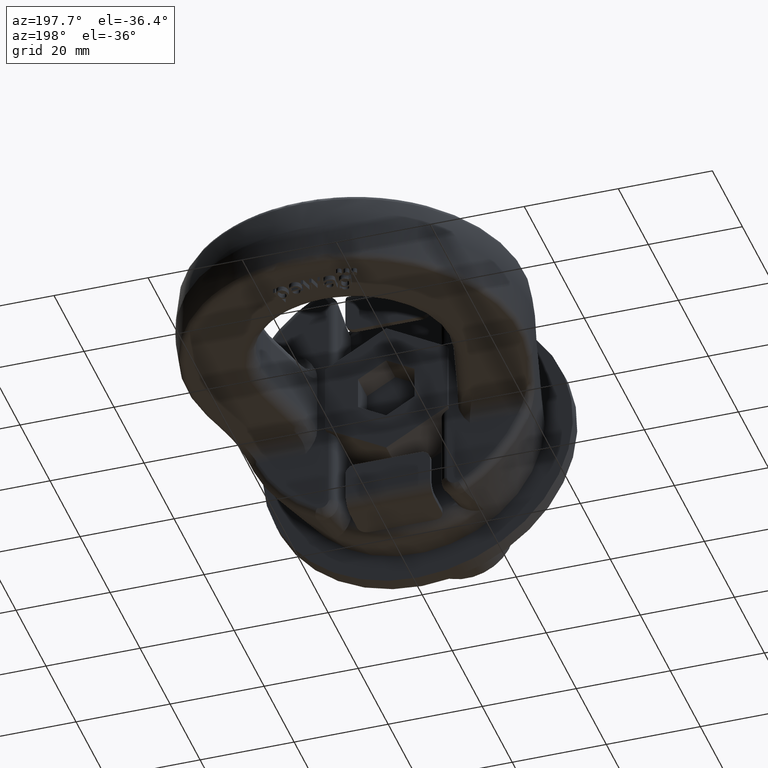
[diagram: clean part render]
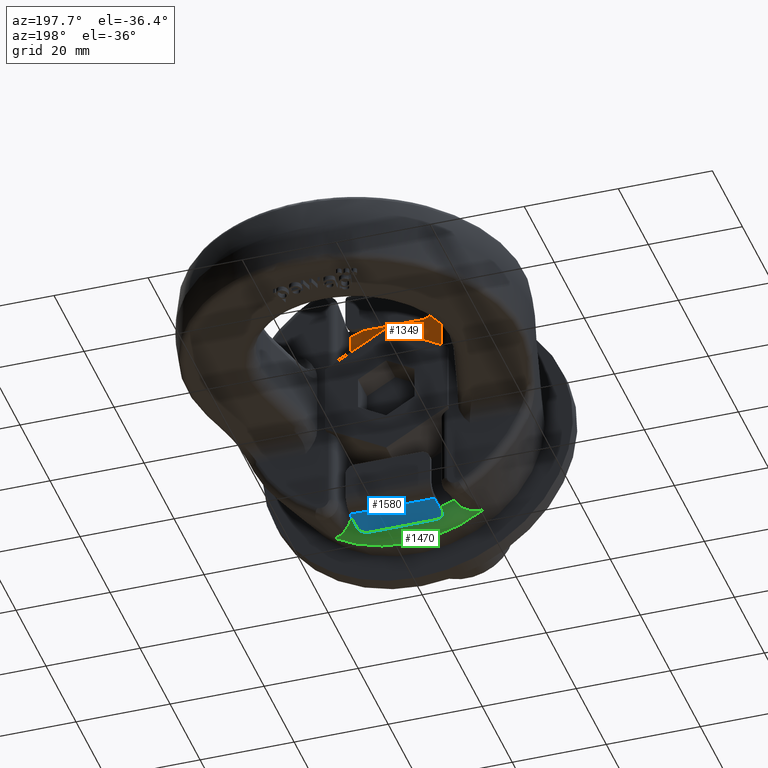
[diagram: same view with three faces highlighted in distinct colors, each labeled with its STEP entity id]
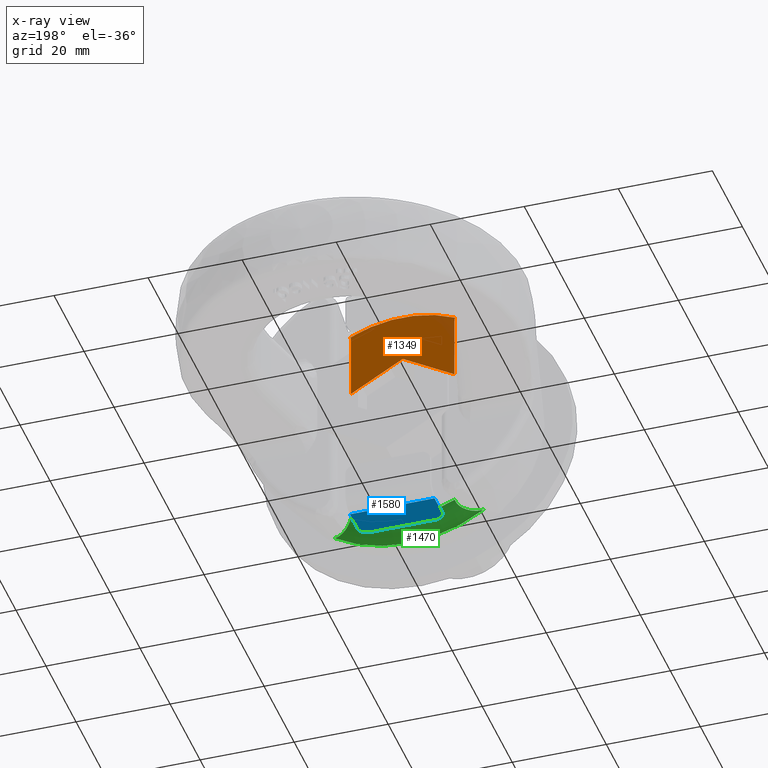
[diagram: x-ray of the same camera — body ghosted, the three highlighted faces saturated]
A machine part, auxiliary view with three faces highlighted in distinct colors.
The next image is the same camera in x-ray (body ghosted, the three faces saturated) — at least one of them is partly hidden behind the body in this view.
Their STEP definitions:

[orange] entity #1349 — the highlighted planar face has unit normal (-0, 1, 0).
#1129=FACE_OUTER_BOUND('',#1866,.T.);
#1349=ADVANCED_FACE('',(#1129),#1589,.T.);
#1589=PLANE('',#5176);
#1711=CIRCLE('',#5175,25.4474312312637);
#1866=EDGE_LOOP('',(#2828,#2829,#2830,#2831,#2832,#2833,#2834));
#2178=LINE('',#6694,#2458);
#2179=LINE('',#6708,#2459);
#2180=LINE('',#6710,#2460);
#2181=LINE('',#6712,#2461);
#2458=VECTOR('',#5502,1.);
#2459=VECTOR('',#5507,1.);
#2460=VECTOR('',#5508,1.);
#2461=VECTOR('',#5509,1.);
#2828=ORIENTED_EDGE('',*,*,#4394,.T.);
#2829=ORIENTED_EDGE('',*,*,#4395,.T.);
#2830=ORIENTED_EDGE('',*,*,#4396,.T.);
#2831=ORIENTED_EDGE('',*,*,#4397,.T.);
#2832=ORIENTED_EDGE('',*,*,#4398,.F.);
#2833=ORIENTED_EDGE('',*,*,#4399,.T.);
#2834=ORIENTED_EDGE('',*,*,#4400,.T.);
#4002=VERTEX_POINT('',#6682);
#4005=VERTEX_POINT('',#6693);
#4006=VERTEX_POINT('',#6700);
#4007=VERTEX_POINT('',#6702);
#4008=VERTEX_POINT('',#6707);
#4009=VERTEX_POINT('',#6709);
#4010=VERTEX_POINT('',#6711);
#4394=EDGE_CURVE('',#4002,#4005,#2178,.T.);
#4395=EDGE_CURVE('',#4005,#4006,#4927,.T.);
#4396=EDGE_CURVE('',#4006,#4007,#1711,.T.);
#4397=EDGE_CURVE('',#4007,#4008,#4928,.T.);
#4398=EDGE_CURVE('',#4009,#4008,#2179,.T.);
#4399=EDGE_CURVE('',#4009,#4010,#2180,.T.);
#4400=EDGE_CURVE('',#4010,#4002,#2181,.T.);
#4927=B_SPLINE_CURVE_WITH_KNOTS('',3,(#6696,#6697,#6698,#6699),
 .UNSPECIFIED.,.F.,.F.,(4,4),(0.,1.),.UNSPECIFIED.);
#4928=B_SPLINE_CURVE_WITH_KNOTS('',3,(#6703,#6704,#6705,#6706),
 .UNSPECIFIED.,.F.,.F.,(4,4),(0.,1.),.UNSPECIFIED.);
#5175=AXIS2_PLACEMENT_3D('',#6701,#5505,#5506);
#5176=AXIS2_PLACEMENT_3D('',#6713,#5510,#5511);
#5502=DIRECTION('',(0.,0.,1.));
#5505=DIRECTION('',(-2.36553201269565E-16,1.,0.));
#5506=DIRECTION('',(-1.,-2.04506709562762E-16,0.));
#5507=DIRECTION('',(0.,0.,1.));
#5508=DIRECTION('',(-0.866025403784442,-2.04861081645977E-16,0.499999999999995));
#5509=DIRECTION('',(-0.866025403784442,-2.04861081645977E-16,-0.499999999999995));
#5510=DIRECTION('',(-2.36553201269565E-16,1.,0.));
#5511=DIRECTION('',(-1.,-2.35922392732846E-16,0.));
#6682=CARTESIAN_POINT('',(-11.,13.,8.66025403784439));
#6693=CARTESIAN_POINT('',(-11.,13.,22.1036429607526));
#6694=CARTESIAN_POINT('',(-11.,13.,40.15));
#6696=CARTESIAN_POINT('',(-11.,13.,22.1036429607526));
#6697=CARTESIAN_POINT('',(-11.,13.,22.3717313278362));
#6698=CARTESIAN_POINT('',(-11.031175268281,13.,22.6415939864479));
#6699=CARTESIAN_POINT('',(-11.0925260053939,13.,22.9025680457359));
#6700=CARTESIAN_POINT('',(-11.0925260053939,13.,22.9025680457359));
#6701=CARTESIAN_POINT('',(-1.57184976828268E-13,13.,0.));
#6702=CARTESIAN_POINT('',(11.0925260053939,13.,22.9025680457357));
#6703=CARTESIAN_POINT('',(11.0925260053939,13.,22.9025680457357));
#6704=CARTESIAN_POINT('',(11.031175268281,13.,22.6415939864478));
#6705=CARTESIAN_POINT('',(11.,13.,22.371731327836));
#6706=CARTESIAN_POINT('',(11.,13.,22.1036429607525));
#6707=CARTESIAN_POINT('',(11.,13.,22.1036429607525));
#6708=CARTESIAN_POINT('',(11.,13.,40.15));
#6709=CARTESIAN_POINT('',(11.,13.,8.66025403784439));
#6710=CARTESIAN_POINT('',(-19.1354599809726,13.,26.0589699700119));
#6711=CARTESIAN_POINT('',(0.,13.,15.0111069989302));
#6712=CARTESIAN_POINT('',(2.63545998097249,13.,16.5326905283831));
#6713=CARTESIAN_POINT('',(-11.,13.,40.15));

[blue] entity #1580 — the highlighted planar face has unit normal (-0, 0, 1).
#1340=FACE_OUTER_BOUND('',#2124,.T.);
#1580=ADVANCED_FACE('',(#1340),#1703,.F.);
#1703=PLANE('',#5426);
#1793=CIRCLE('',#5424,2.);
#1794=CIRCLE('',#5425,2.);
#2124=EDGE_LOOP('',(#3901,#3902,#3903,#3904,#3905,#3906));
#2385=LINE('',#9670,#2721);
#2393=LINE('',#9692,#2729);
#2397=LINE('',#9701,#2733);
#2408=LINE('',#9735,#2744);
#2721=VECTOR('',#6227,1.);
#2729=VECTOR('',#6241,1.);
#2733=VECTOR('',#6247,1.);
#2744=VECTOR('',#6286,1.);
#3901=ORIENTED_EDGE('',*,*,#4875,.F.);
#3902=ORIENTED_EDGE('',*,*,#4899,.T.);
#3903=ORIENTED_EDGE('',*,*,#4865,.F.);
#3904=ORIENTED_EDGE('',*,*,#4898,.T.);
#3905=ORIENTED_EDGE('',*,*,#4879,.T.);
#3906=ORIENTED_EDGE('',*,*,#4900,.T.);
#4288=VERTEX_POINT('',#9671);
#4289=VERTEX_POINT('',#9672);
#4298=VERTEX_POINT('',#9691);
#4299=VERTEX_POINT('',#9693);
#4302=VERTEX_POINT('',#9700);
#4303=VERTEX_POINT('',#9702);
#4865=EDGE_CURVE('',#4288,#4289,#2385,.T.);
#4875=EDGE_CURVE('',#4298,#4299,#2393,.T.);
#4879=EDGE_CURVE('',#4303,#4302,#2397,.T.);
#4898=EDGE_CURVE('',#4288,#4303,#2408,.T.);
#4899=EDGE_CURVE('',#4298,#4289,#1793,.T.);
#4900=EDGE_CURVE('',#4302,#4299,#1794,.T.);
#5424=AXIS2_PLACEMENT_3D('',#9737,#6289,#6290);
#5425=AXIS2_PLACEMENT_3D('',#9738,#6291,#6292);
#5426=AXIS2_PLACEMENT_3D('',#9739,#6293,#6294);
#6227=DIRECTION('',(0.,-1.,0.));
#6241=DIRECTION('',(1.,0.,2.34291072916505E-15));
#6247=DIRECTION('',(0.,-1.,0.));
#6286=DIRECTION('',(1.,0.,2.34291072916505E-15));
#6289=DIRECTION('',(2.34291072916505E-15,0.,-1.));
#6290=DIRECTION('',(1.,0.,1.73472347597681E-15));
#6291=DIRECTION('',(2.34291072916505E-15,0.,-1.));
#6292=DIRECTION('',(1.,0.,1.73472347597681E-15));
#6293=DIRECTION('',(-2.34291072916505E-15,0.,1.));
#6294=DIRECTION('',(1.,0.,2.34187669256869E-15));
#9670=CARTESIAN_POINT('',(-8.99999999999994,20.,-27.));
#9671=CARTESIAN_POINT('',(-8.99999999999994,20.,-27.));
#9672=CARTESIAN_POINT('',(-8.99999999999994,15.,-27.));
#9691=CARTESIAN_POINT('',(-6.99999999999994,13.,-27.));
#9692=CARTESIAN_POINT('',(-8.99999999999994,13.,-27.));
#9693=CARTESIAN_POINT('',(7.00000000000006,13.,-27.));
#9700=CARTESIAN_POINT('',(9.00000000000006,15.,-27.));
#9701=CARTESIAN_POINT('',(9.00000000000006,20.,-27.));
#9702=CARTESIAN_POINT('',(9.00000000000006,20.,-27.));
#9735=CARTESIAN_POINT('',(-8.99999999999994,20.,-27.));
#9737=CARTESIAN_POINT('',(-6.99999999999994,15.,-27.));
#9738=CARTESIAN_POINT('',(7.00000000000006,15.,-27.));
#9739=CARTESIAN_POINT('',(-8.99999999999994,20.,-27.));

[green] entity #1470 — the highlighted toroidal blend (fillet) surface has major radius 25.4474 mm and minor (blend) radius 3.2 mm.
#1055=TOROIDAL_SURFACE('',#5309,25.4474312312637,3.2);
#1237=FACE_OUTER_BOUND('',#2007,.T.);
#1470=ADVANCED_FACE('',(#1237),#1055,.T.);
#1716=CIRCLE('',#5183,28.5462394060255);
#1753=CIRCLE('',#5300,25.4474312312637);
#2007=EDGE_LOOP('',(#3418,#3419,#3420,#3421));
#3418=ORIENTED_EDGE('',*,*,#4688,.T.);
#3419=ORIENTED_EDGE('',*,*,#4675,.F.);
#3420=ORIENTED_EDGE('',*,*,#4690,.T.);
#3421=ORIENTED_EDGE('',*,*,#4423,.F.);
#4032=VERTEX_POINT('',#6827);
#4033=VERTEX_POINT('',#6829);
#4190=VERTEX_POINT('',#8421);
#4191=VERTEX_POINT('',#8423);
#4423=EDGE_CURVE('',#4032,#4033,#1716,.T.);
#4675=EDGE_CURVE('',#4190,#4191,#1753,.T.);
#4688=EDGE_CURVE('',#4032,#4191,#5068,.T.);
#4690=EDGE_CURVE('',#4190,#4033,#5070,.T.);
#5068=B_SPLINE_CURVE_WITH_KNOTS('',3,(#8474,#8475,#8476,#8477,#8478,#8479,
#8480,#8481),.UNSPECIFIED.,.F.,.F.,(4,2,2,4),(0.,0.5,0.75,1.),
 .UNSPECIFIED.);
#5070=B_SPLINE_CURVE_WITH_KNOTS('',3,(#8516,#8517,#8518,#8519,#8520,#8521,
#8522,#8523),.UNSPECIFIED.,.F.,.F.,(4,2,2,4),(0.,0.25,0.5,1.),
 .UNSPECIFIED.);
#5183=AXIS2_PLACEMENT_3D('',#6828,#5534,#5535);
#5300=AXIS2_PLACEMENT_3D('',#8422,#5903,#5904);
#5309=AXIS2_PLACEMENT_3D('',#8536,#5928,#5929);
#5534=DIRECTION('',(-2.36553201269565E-16,-1.,-5.54223033272802E-31));
#5535=DIRECTION('',(-1.,2.43075587127689E-16,-2.34291072916505E-15));
#5903=DIRECTION('',(2.36553201269565E-16,1.,5.54223033272802E-31));
#5904=DIRECTION('',(1.,-2.04506709562762E-16,2.34291072916505E-15));
#5928=DIRECTION('',(2.36553201269565E-16,1.,5.54223033272802E-31));
#5929=DIRECTION('',(1.,-2.42216966955649E-16,2.34291072916505E-15));
#6827=CARTESIAN_POINT('',(-15.9291755573174,9.00163423418237,-23.6885869205042));
#6828=CARTESIAN_POINT('',(1.13244985854797E-13,9.00163423418236,2.65322892383348E-28));
#6829=CARTESIAN_POINT('',(15.9291755573175,9.00163423418238,-23.6885869205043));
#8421=CARTESIAN_POINT('',(11.092526005394,13.,-22.9025680457358));
#8422=CARTESIAN_POINT('',(1.57184976828268E-13,13.,3.68270368674508E-28));
#8423=CARTESIAN_POINT('',(-11.0925260053938,13.,-22.9025680457357));
#8474=CARTESIAN_POINT('',(-15.9291755573174,9.00163423418236,-23.6885869205042));
#8475=CARTESIAN_POINT('',(-15.2289696707419,9.7470335972858,-24.390856734449));
#8476=CARTESIAN_POINT('',(-14.3452049211129,10.5757088949326,-24.8552266937648));
#8477=CARTESIAN_POINT('',(-12.930545224965,11.7787213747801,-24.8436594537011));
#8478=CARTESIAN_POINT('',(-12.435503990957,12.1793401429735,-24.711372829793));
#8479=CARTESIAN_POINT('',(-11.5780739435397,12.8010781302692,-24.0576663479174));
#8480=CARTESIAN_POINT('',(-11.2365061086134,13.,-23.5150312982112));
#8481=CARTESIAN_POINT('',(-11.0925260053938,13.,-22.9025680457357));
#8516=CARTESIAN_POINT('',(11.092526005394,13.,-22.9025680457358));
#8517=CARTESIAN_POINT('',(11.2365061086135,13.,-23.5150312982113));
#8518=CARTESIAN_POINT('',(11.5780739435398,12.8010781302692,-24.0576663479175));
#8519=CARTESIAN_POINT('',(12.4355039909571,12.1793401429735,-24.7113728297931));
#8520=CARTESIAN_POINT('',(12.9305452249651,11.7787213747801,-24.8436594537012));
#8521=CARTESIAN_POINT('',(14.345204921113,10.5757088949326,-24.8552266937649));
#8522=CARTESIAN_POINT('',(15.2289696717493,9.74703359851161,-24.3908567341523));
#8523=CARTESIAN_POINT('',(15.9291755573175,9.00163423418237,-23.6885869205043));
#8536=CARTESIAN_POINT('',(1.56428006584205E-13,9.8,3.66496854968035E-28));